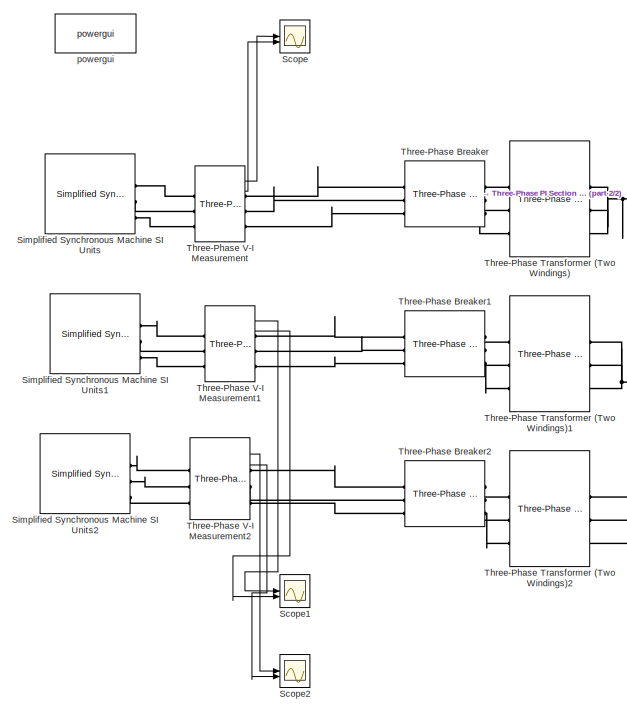
[diagram: root canvas - part 1/2, left side, full height]
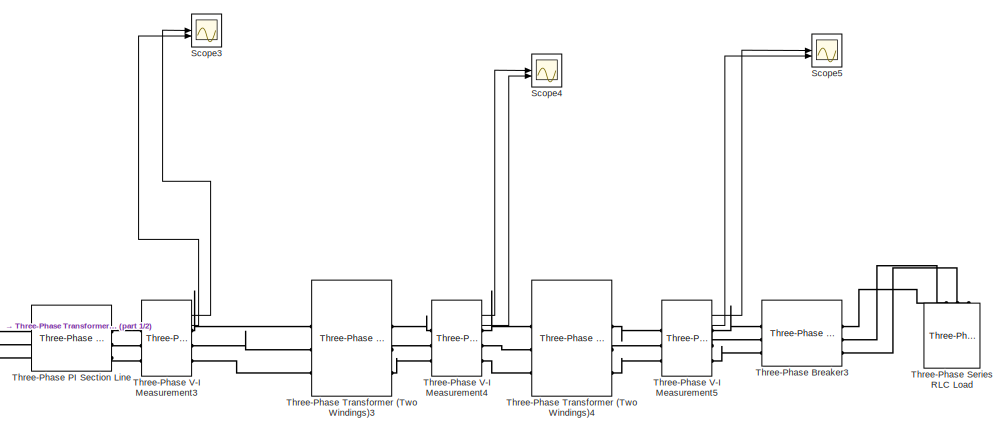
[diagram: root canvas - part 2/2, middle right region]
MODEL slx_be1f15f409da
KIND model
CONFIG AbsTol = auto
CONFIG EnableMultiTasking = off
CONFIG FixedStep = auto
CONFIG MaxStep = auto
CONFIG MinStep = auto
CONFIG RelTol = 1e-3
CONFIG SampleTimeConstraint = Unconstrained
CONFIG SolverName = VariableStepAuto
CONFIG StartTime = 0.0
CONFIG StopTime = 10.0
BLOCK [Scope] Scope
  Floating = off
  NumInputPorts = 2
  ScopeSpecificationString = Simulink.scopes.TimeScopeBlockCfg('CurrentConfiguration', extmgr.ConfigurationSet(extmgr.Configuration('Core','General UI',true),extmgr.Configuration('Core','Source UI',true),extmgr.Configuration('Sources','WiredSimulink',true),extmgr.Configuration('Visuals','Time Domain',true,'SerializedDisplays',{struct('MinYLimReal','-10','MaxYLimReal','10','YLabelReal','','MinYLimMag','0','MaxYLimMag','10','Le...<+2231ch>
BLOCK [Scope] Scope1
  Floating = off
  NumInputPorts = 2
  ScopeSpecificationString = Simulink.scopes.TimeScopeBlockCfg('CurrentConfiguration', extmgr.ConfigurationSet(extmgr.Configuration('Core','General UI',true),extmgr.Configuration('Core','Source UI',true),extmgr.Configuration('Sources','WiredSimulink',true,'DataLoggingVariableName','ScopeData1'),extmgr.Configuration('Visuals','Time Domain',true,'SerializedDisplays',{struct('MinYLimReal','-10','MaxYLimReal','10','YLabelReal',''...<+2270ch>
BLOCK [Scope] Scope2
  Floating = off
  NumInputPorts = 2
  ScopeSpecificationString = Simulink.scopes.TimeScopeBlockCfg('CurrentConfiguration', extmgr.ConfigurationSet(extmgr.Configuration('Core','General UI',true),extmgr.Configuration('Core','Source UI',true),extmgr.Configuration('Sources','WiredSimulink',true,'DataLoggingVariableName','ScopeData2'),extmgr.Configuration('Visuals','Time Domain',true,'SerializedDisplays',{struct('MinYLimReal','-10','MaxYLimReal','10','YLabelReal',''...<+2270ch>
BLOCK [Scope] Scope3
  Floating = off
  NumInputPorts = 2
  ScopeSpecificationString = Simulink.scopes.TimeScopeBlockCfg('CurrentConfiguration', extmgr.ConfigurationSet(extmgr.Configuration('Core','General UI',true),extmgr.Configuration('Core','Source UI',true),extmgr.Configuration('Sources','WiredSimulink',true,'DataLoggingVariableName','ScopeData3'),extmgr.Configuration('Visuals','Time Domain',true,'SerializedDisplays',{struct('MinYLimReal','-10','MaxYLimReal','10','YLabelReal',''...<+2270ch>
BLOCK [Scope] Scope4
  Floating = off
  NumInputPorts = 2
  ScopeSpecificationString = Simulink.scopes.TimeScopeBlockCfg('CurrentConfiguration', extmgr.ConfigurationSet(extmgr.Configuration('Core','General UI',true),extmgr.Configuration('Core','Source UI',true),extmgr.Configuration('Sources','WiredSimulink',true,'DataLoggingVariableName','ScopeData4'),extmgr.Configuration('Visuals','Time Domain',true,'SerializedDisplays',{struct('MinYLimReal','-10','MaxYLimReal','10','YLabelReal',''...<+2270ch>
BLOCK [Scope] Scope5
  Floating = off
  NumInputPorts = 2
  ScopeSpecificationString = Simulink.scopes.TimeScopeBlockCfg('CurrentConfiguration', extmgr.ConfigurationSet(extmgr.Configuration('Core','General UI',true),extmgr.Configuration('Core','Source UI',true),extmgr.Configuration('Sources','WiredSimulink',true,'DataLoggingVariableName','ScopeData5'),extmgr.Configuration('Visuals','Time Domain',true,'SerializedDisplays',{struct('MinYLimReal','-10','MaxYLimReal','10','YLabelReal',''...<+2270ch>
BLOCK [Reference] Simplified Synchronous Machine SI Units  REF=spsSimplifiedSynchronousMachineSIUnitsLib/Simplified Synchronous
Machine SI Units
  LibrarySourceBlock = sps_lib/Electrical Machines/Simplified Synchronous\nMachine SI Units
  SourceBlock = spsSimplifiedSynchronousMachineSIUnitsLib/Simplified Synchronous\nMachine SI Units
  SourceType = Simplified Synchronous Machine
BLOCK [Reference] Simplified Synchronous Machine SI Units1  REF=spsSimplifiedSynchronousMachineSIUnitsLib/Simplified Synchronous
Machine SI Units
  LibrarySourceBlock = sps_lib/Electrical Machines/Simplified Synchronous\nMachine SI Units
  SourceBlock = spsSimplifiedSynchronousMachineSIUnitsLib/Simplified Synchronous\nMachine SI Units
  SourceType = Simplified Synchronous Machine
BLOCK [Reference] Simplified Synchronous Machine SI Units2  REF=spsSimplifiedSynchronousMachineSIUnitsLib/Simplified Synchronous
Machine SI Units
  LibrarySourceBlock = sps_lib/Electrical Machines/Simplified Synchronous\nMachine SI Units
  SourceBlock = spsSimplifiedSynchronousMachineSIUnitsLib/Simplified Synchronous\nMachine SI Units
  SourceType = Simplified Synchronous Machine
BLOCK [Reference] Three-Phase Breaker  REF=spsThreePhaseBreakerLib/Three-Phase Breaker
  LibrarySourceBlock = sps_lib/Power Grid Elements/Three-Phase Breaker
  SourceBlock = spsThreePhaseBreakerLib/Three-Phase Breaker
  SourceType = Three-Phase Breaker
BLOCK [Reference] Three-Phase Breaker1  REF=spsThreePhaseBreakerLib/Three-Phase Breaker
  LibrarySourceBlock = sps_lib/Power Grid Elements/Three-Phase Breaker
  SourceBlock = spsThreePhaseBreakerLib/Three-Phase Breaker
  SourceType = Three-Phase Breaker
BLOCK [Reference] Three-Phase Breaker2  REF=spsThreePhaseBreakerLib/Three-Phase Breaker
  LibrarySourceBlock = sps_lib/Power Grid Elements/Three-Phase Breaker
  SourceBlock = spsThreePhaseBreakerLib/Three-Phase Breaker
  SourceType = Three-Phase Breaker
BLOCK [Reference] Three-Phase Breaker3  REF=spsThreePhaseBreakerLib/Three-Phase Breaker
  LibrarySourceBlock = sps_lib/Power Grid Elements/Three-Phase Breaker
  SourceBlock = spsThreePhaseBreakerLib/Three-Phase Breaker
  SourceType = Three-Phase Breaker
BLOCK [Reference] Three-Phase PI Section Line  REF=spsThreePhasePISectionLineLib/Three-Phase
PI Section Line
  AttributesFormatString = \n
  LibrarySourceBlock = sps_lib/Power Grid Elements/Three-Phase\nPI Section Line
  SourceBlock = spsThreePhasePISectionLineLib/Three-Phase\nPI Section Line
  SourceType = Three-Phase PI Section Line
BLOCK [Reference] Three-Phase Series RLC Load  REF=spsThreePhaseSeriesRLCLoadLib/Three-Phase
Series RLC Load
  AttributesFormatString = \n
  LibrarySourceBlock = sps_lib/Passives/Three-Phase\nSeries RLC Load
  SourceBlock = spsThreePhaseSeriesRLCLoadLib/Three-Phase\nSeries RLC Load
  SourceType = Three-Phase Series RLC Load
BLOCK [Reference] Three-Phase Transformer (Two Windings)  REF=spsThreePhaseTransformerTwoWindingsLib/Three-Phase
Transformer
(Two Windings)
  LibrarySourceBlock = sps_lib/Power Grid Elements/Three-Phase\nTransformer\n(Two Windings)
  SourceBlock = spsThreePhaseTransformerTwoWindingsLib/Three-Phase\nTransformer\n(Two Windings)
  SourceType = Three-Phase Transformer (Two Windings)
BLOCK [Reference] Three-Phase Transformer (Two Windings)1  REF=spsThreePhaseTransformerTwoWindingsLib/Three-Phase
Transformer
(Two Windings)
  LibrarySourceBlock = sps_lib/Power Grid Elements/Three-Phase\nTransformer\n(Two Windings)
  SourceBlock = spsThreePhaseTransformerTwoWindingsLib/Three-Phase\nTransformer\n(Two Windings)
  SourceType = Three-Phase Transformer (Two Windings)
BLOCK [Reference] Three-Phase Transformer (Two Windings)2  REF=spsThreePhaseTransformerTwoWindingsLib/Three-Phase
Transformer
(Two Windings)
  LibrarySourceBlock = sps_lib/Power Grid Elements/Three-Phase\nTransformer\n(Two Windings)
  SourceBlock = spsThreePhaseTransformerTwoWindingsLib/Three-Phase\nTransformer\n(Two Windings)
  SourceType = Three-Phase Transformer (Two Windings)
BLOCK [Reference] Three-Phase Transformer (Two Windings)3  REF=spsThreePhaseTransformerTwoWindingsLib/Three-Phase
Transformer
(Two Windings)
  LibrarySourceBlock = sps_lib/Power Grid Elements/Three-Phase\nTransformer\n(Two Windings)
  SourceBlock = spsThreePhaseTransformerTwoWindingsLib/Three-Phase\nTransformer\n(Two Windings)
  SourceType = Three-Phase Transformer (Two Windings)
BLOCK [Reference] Three-Phase Transformer (Two Windings)4  REF=spsThreePhaseTransformerTwoWindingsLib/Three-Phase
Transformer
(Two Windings)
  LibrarySourceBlock = sps_lib/Power Grid Elements/Three-Phase\nTransformer\n(Two Windings)
  SourceBlock = spsThreePhaseTransformerTwoWindingsLib/Three-Phase\nTransformer\n(Two Windings)
  SourceType = Three-Phase Transformer (Two Windings)
BLOCK [Reference] Three-Phase V-I Measurement  REF=spsThreePhaseVIMeasurementLib/Three-Phase
V-I Measurement
  LibrarySourceBlock = sps_lib/Sensors and Measurements/Three-Phase\nV-I Measurement
  SourceBlock = spsThreePhaseVIMeasurementLib/Three-Phase\nV-I Measurement
  SourceType = Three-Phase VI Measurement
BLOCK [Reference] Three-Phase V-I Measurement1  REF=spsThreePhaseVIMeasurementLib/Three-Phase
V-I Measurement
  LibrarySourceBlock = sps_lib/Sensors and Measurements/Three-Phase\nV-I Measurement
  SourceBlock = spsThreePhaseVIMeasurementLib/Three-Phase\nV-I Measurement
  SourceType = Three-Phase VI Measurement
BLOCK [Reference] Three-Phase V-I Measurement2  REF=spsThreePhaseVIMeasurementLib/Three-Phase
V-I Measurement
  LibrarySourceBlock = sps_lib/Sensors and Measurements/Three-Phase\nV-I Measurement
  SourceBlock = spsThreePhaseVIMeasurementLib/Three-Phase\nV-I Measurement
  SourceType = Three-Phase VI Measurement
BLOCK [Reference] Three-Phase V-I Measurement3  REF=spsThreePhaseVIMeasurementLib/Three-Phase
V-I Measurement
  LibrarySourceBlock = sps_lib/Sensors and Measurements/Three-Phase\nV-I Measurement
  SourceBlock = spsThreePhaseVIMeasurementLib/Three-Phase\nV-I Measurement
  SourceType = Three-Phase VI Measurement
BLOCK [Reference] Three-Phase V-I Measurement4  REF=spsThreePhaseVIMeasurementLib/Three-Phase
V-I Measurement
  LibrarySourceBlock = sps_lib/Sensors and Measurements/Three-Phase\nV-I Measurement
  SourceBlock = spsThreePhaseVIMeasurementLib/Three-Phase\nV-I Measurement
  SourceType = Three-Phase VI Measurement
BLOCK [Reference] Three-Phase V-I Measurement5  REF=spsThreePhaseVIMeasurementLib/Three-Phase
V-I Measurement
  LibrarySourceBlock = sps_lib/Sensors and Measurements/Three-Phase\nV-I Measurement
  SourceBlock = spsThreePhaseVIMeasurementLib/Three-Phase\nV-I Measurement
  SourceType = Three-Phase VI Measurement
BLOCK [Reference] powergui  REF=spspowerguiLib/powergui
  LibrarySourceBlock = sps_lib/powergui
  Priority = 1
  SourceBlock = spspowerguiLib/powergui
  SourceType = PSB option menu block
LINE Three-Phase V-I Measurement1:1 -> Scope1:1
LINE Three-Phase V-I Measurement1:2 -> Scope1:2
LINE Three-Phase V-I Measurement2:1 -> Scope2:1
LINE Three-Phase V-I Measurement2:2 -> Scope2:2
LINE Three-Phase V-I Measurement3:1 -> Scope3:1
LINE Three-Phase V-I Measurement3:2 -> Scope3:2
LINE Three-Phase V-I Measurement4:1 -> Scope4:1
LINE Three-Phase V-I Measurement4:2 -> Scope4:2
LINE Three-Phase V-I Measurement5:1 -> Scope5:1
LINE Three-Phase V-I Measurement5:2 -> Scope5:2
LINE Three-Phase V-I Measurement:1 -> Scope:1
LINE Three-Phase V-I Measurement:2 -> Scope:2
PLINE Simplified Synchronous Machine SI Units1:RConn1 -- Three-Phase V-I Measurement1:LConn1
PLINE Simplified Synchronous Machine SI Units1:RConn2 -- Three-Phase V-I Measurement1:LConn2
PLINE Simplified Synchronous Machine SI Units1:RConn3 -- Three-Phase V-I Measurement1:LConn3
PLINE Simplified Synchronous Machine SI Units2:RConn1 -- Three-Phase V-I Measurement2:LConn1
PLINE Simplified Synchronous Machine SI Units2:RConn2 -- Three-Phase V-I Measurement2:LConn2
PLINE Simplified Synchronous Machine SI Units2:RConn3 -- Three-Phase V-I Measurement2:LConn3
PLINE Simplified Synchronous Machine SI Units:RConn1 -- Three-Phase V-I Measurement:LConn1
PLINE Simplified Synchronous Machine SI Units:RConn2 -- Three-Phase V-I Measurement:LConn2
PLINE Simplified Synchronous Machine SI Units:RConn3 -- Three-Phase V-I Measurement:LConn3
PLINE Three-Phase Breaker1:LConn1 -- Three-Phase V-I Measurement1:RConn1
PLINE Three-Phase Breaker1:LConn2 -- Three-Phase V-I Measurement1:RConn2
PLINE Three-Phase Breaker1:LConn3 -- Three-Phase V-I Measurement1:RConn3
PLINE Three-Phase Breaker1:RConn1 -- Three-Phase Transformer (Two Windings)1:LConn1
PLINE Three-Phase Breaker1:RConn2 -- Three-Phase Transformer (Two Windings)1:LConn2
PLINE Three-Phase Breaker1:RConn3 -- Three-Phase Transformer (Two Windings)1:LConn3
PLINE Three-Phase Breaker2:LConn1 -- Three-Phase V-I Measurement2:RConn1
PLINE Three-Phase Breaker2:LConn2 -- Three-Phase V-I Measurement2:RConn2
PLINE Three-Phase Breaker2:LConn3 -- Three-Phase V-I Measurement2:RConn3
PLINE Three-Phase Breaker2:RConn1 -- Three-Phase Transformer (Two Windings)2:LConn1
PLINE Three-Phase Breaker2:RConn2 -- Three-Phase Transformer (Two Windings)2:LConn2
PLINE Three-Phase Breaker2:RConn3 -- Three-Phase Transformer (Two Windings)2:LConn3
PLINE Three-Phase Breaker3:LConn1 -- Three-Phase V-I Measurement5:RConn1
PLINE Three-Phase Breaker3:LConn2 -- Three-Phase V-I Measurement5:RConn2
PLINE Three-Phase Breaker3:LConn3 -- Three-Phase V-I Measurement5:RConn3
PLINE Three-Phase Breaker3:RConn1 -- Three-Phase Series RLC Load:LConn1
PLINE Three-Phase Breaker3:RConn2 -- Three-Phase Series RLC Load:LConn2
PLINE Three-Phase Breaker3:RConn3 -- Three-Phase Series RLC Load:LConn3
PLINE Three-Phase Breaker:LConn1 -- Three-Phase V-I Measurement:RConn1
PLINE Three-Phase Breaker:LConn2 -- Three-Phase V-I Measurement:RConn2
PLINE Three-Phase Breaker:LConn3 -- Three-Phase V-I Measurement:RConn3
PLINE Three-Phase Breaker:RConn1 -- Three-Phase Transformer (Two Windings):LConn1
PLINE Three-Phase Breaker:RConn2 -- Three-Phase Transformer (Two Windings):LConn2
PLINE Three-Phase Breaker:RConn3 -- Three-Phase Transformer (Two Windings):LConn3
PNET net1: Three-Phase PI Section Line:LConn1 -- Three-Phase Transformer (Two Windings):RConn1 -- Three-Phase Transformer (Two Windings):RConn2 -- Three-Phase Transformer (Two Windings):RConn3
PNET net2: Three-Phase PI Section Line:LConn2 -- Three-Phase Transformer (Two Windings)1:RConn1 -- Three-Phase Transformer (Two Windings)1:RConn2 -- Three-Phase Transformer (Two Windings)1:RConn3
PNET net3: Three-Phase PI Section Line:LConn3 -- Three-Phase Transformer (Two Windings)2:RConn1 -- Three-Phase Transformer (Two Windings)2:RConn2 -- Three-Phase Transformer (Two Windings)2:RConn3
PLINE Three-Phase PI Section Line:RConn1 -- Three-Phase V-I Measurement3:LConn1
PLINE Three-Phase PI Section Line:RConn2 -- Three-Phase V-I Measurement3:LConn2
PLINE Three-Phase PI Section Line:RConn3 -- Three-Phase V-I Measurement3:LConn3
PLINE Three-Phase Transformer (Two Windings)3:LConn1 -- Three-Phase V-I Measurement3:RConn1
PLINE Three-Phase Transformer (Two Windings)3:LConn2 -- Three-Phase V-I Measurement3:RConn2
PLINE Three-Phase Transformer (Two Windings)3:LConn3 -- Three-Phase V-I Measurement3:RConn3
PLINE Three-Phase Transformer (Two Windings)3:RConn1 -- Three-Phase V-I Measurement4:LConn1
PLINE Three-Phase Transformer (Two Windings)3:RConn2 -- Three-Phase V-I Measurement4:LConn2
PLINE Three-Phase Transformer (Two Windings)3:RConn3 -- Three-Phase V-I Measurement4:LConn3
PLINE Three-Phase Transformer (Two Windings)4:LConn1 -- Three-Phase V-I Measurement4:RConn1
PLINE Three-Phase Transformer (Two Windings)4:LConn2 -- Three-Phase V-I Measurement4:RConn2
PLINE Three-Phase Transformer (Two Windings)4:LConn3 -- Three-Phase V-I Measurement4:RConn3
PLINE Three-Phase Transformer (Two Windings)4:RConn1 -- Three-Phase V-I Measurement5:LConn1
PLINE Three-Phase Transformer (Two Windings)4:RConn2 -- Three-Phase V-I Measurement5:LConn2
PLINE Three-Phase Transformer (Two Windings)4:RConn3 -- Three-Phase V-I Measurement5:LConn3
note: PNET lines group multi-terminal physical nets as a canonical sorted terminal list (undirected conserving connections); 2-terminal nets keep the pairwise PLINE form
